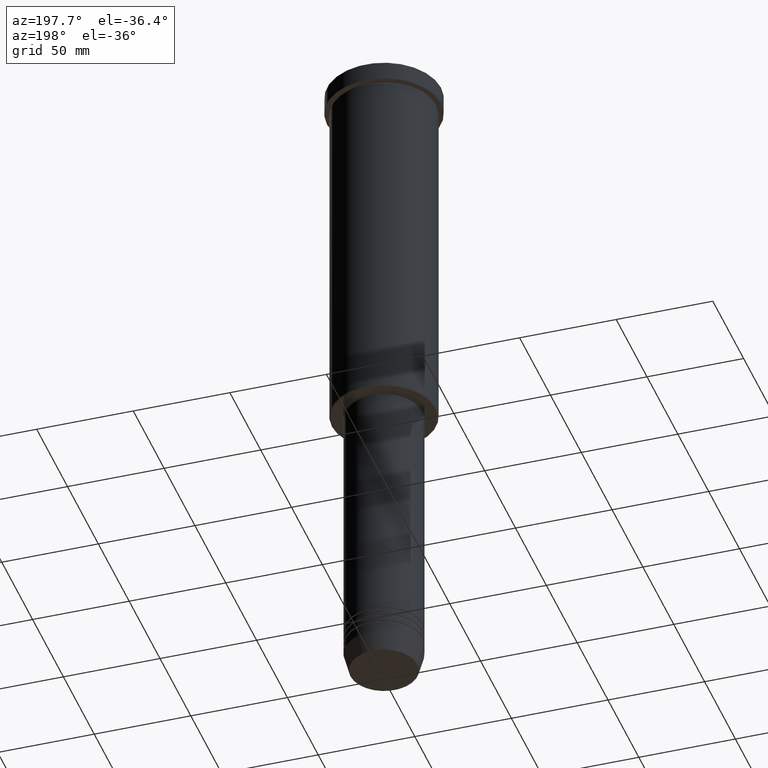
[diagram: clean part render]
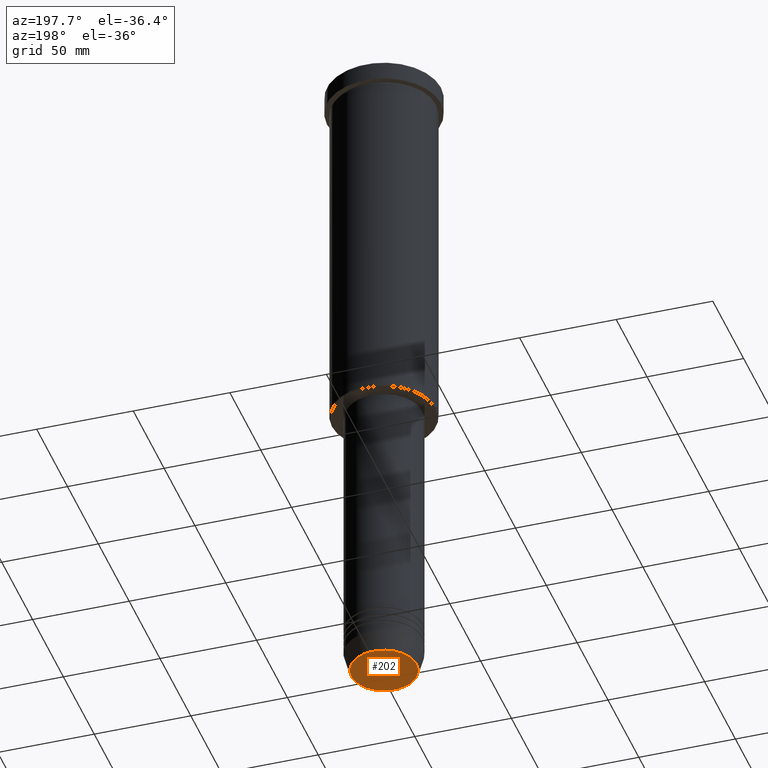
[diagram: same view with one face highlighted and labeled with its STEP entity id]
A machine part, auxiliary view. The second image highlights one B-rep face of the part: STEP entity #202.
In plain terms, the highlighted planar face has unit normal (0, -0, 1).
Its self-contained STEP definition (entity closure, byte-faithful):
#9 = DIRECTION ( 'NONE',  ( 0.000000000000000000, 0.000000000000000000, -1.000000000000000000 ) ) ;
#39 = CARTESIAN_POINT ( 'NONE',  ( 0.000000000000000000, 0.000000000000000000, -351.0000000000000568 ) ) ;
#96 = CARTESIAN_POINT ( 'NONE',  ( 0.000000000000000000, 0.000000000000000000, -351.0000000000000568 ) ) ;
#103 = DIRECTION ( 'NONE',  ( 1.000000000000000000, 0.000000000000000000, 0.000000000000000000 ) ) ;
#137 = DIRECTION ( 'NONE',  ( 0.000000000000000000, 0.000000000000000000, -1.000000000000000000 ) ) ;
#187 = CARTESIAN_POINT ( 'NONE',  ( 16.93684458169928675, 0.000000000000000000, -351.0000000000000568 ) ) ;
#202 = ADVANCED_FACE ( 'NONE', ( #954 ), #500, .F. ) ;
#251 = AXIS2_PLACEMENT_3D ( 'NONE', #39, #137, #950 ) ;
#500 = PLANE ( 'NONE',  #877 ) ;
#582 = CARTESIAN_POINT ( 'NONE',  ( 0.000000000000000000, 0.000000000000000000, -351.0000000000000568 ) ) ;
#666 = DIRECTION ( 'NONE',  ( 0.000000000000000000, -0.000000000000000000, 1.000000000000000000 ) ) ;
#686 = DIRECTION ( 'NONE',  ( 1.000000000000000000, 0.000000000000000000, 0.000000000000000000 ) ) ;
#752 = AXIS2_PLACEMENT_3D ( 'NONE', #96, #9, #103 ) ;
#776 = EDGE_LOOP ( 'NONE', ( #917, #780 ) ) ;
#780 = ORIENTED_EDGE ( 'NONE', *, *, #1102, .T. ) ;
#861 = CIRCLE ( 'NONE', #752, 16.93684458169928675 ) ;
#865 = VERTEX_POINT ( 'NONE', #187 ) ;
#877 = AXIS2_PLACEMENT_3D ( 'NONE', #582, #666, #686 ) ;
#880 = CIRCLE ( 'NONE', #251, 16.93684458169928675 ) ;
#917 = ORIENTED_EDGE ( 'NONE', *, *, #998, .T. ) ;
#950 = DIRECTION ( 'NONE',  ( 1.000000000000000000, 0.000000000000000000, 0.000000000000000000 ) ) ;
#954 = FACE_OUTER_BOUND ( 'NONE', #776, .T. ) ;
#956 = CARTESIAN_POINT ( 'NONE',  ( -16.93684458169928675, 2.103738199747889592E-15, -351.0000000000000568 ) ) ;
#998 = EDGE_CURVE ( 'NONE', #865, #1011, #861, .T. ) ;
#1011 = VERTEX_POINT ( 'NONE', #956 ) ;
#1102 = EDGE_CURVE ( 'NONE', #1011, #865, #880, .T. ) ;